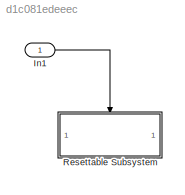
MODEL slx_d1c081edeeec
KIND model
CONFIG AbsTol = auto
CONFIG FixedStep = auto
CONFIG MaxStep = auto
CONFIG MinStep = auto
CONFIG RelTol = 1e-3
CONFIG SampleTimeConstraint = Unconstrained
CONFIG Solver = VariableStepAuto
CONFIG SolverMode = Auto
CONFIG SolverName = VariableStepAuto
CONFIG StartTime = 0.0
CONFIG StopTime = 10.0
BLOCK [Inport] In1
  IconDisplay = Port number
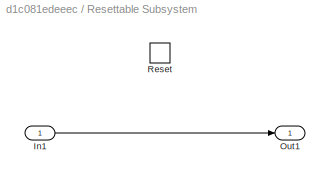
BLOCK [SubSystem] Resettable Subsystem
  Ports = [1, 1, 0, 0, 0, 0, 0, 0, 1]
  RequestExecContextInheritance = off
  TreatAsAtomicUnit = on
  Variant = off
BLOCK [Inport] Resettable Subsystem/In1
  IconDisplay = Port number
BLOCK [Outport] Resettable Subsystem/Out1
  IconDisplay = Port number
BLOCK [ResetPort] Resettable Subsystem/Reset
  DisableCoverage = on
LINE In1:1 -> Resettable Subsystem:Reset
LINE Resettable Subsystem/In1:1 -> Resettable Subsystem/Out1:1
